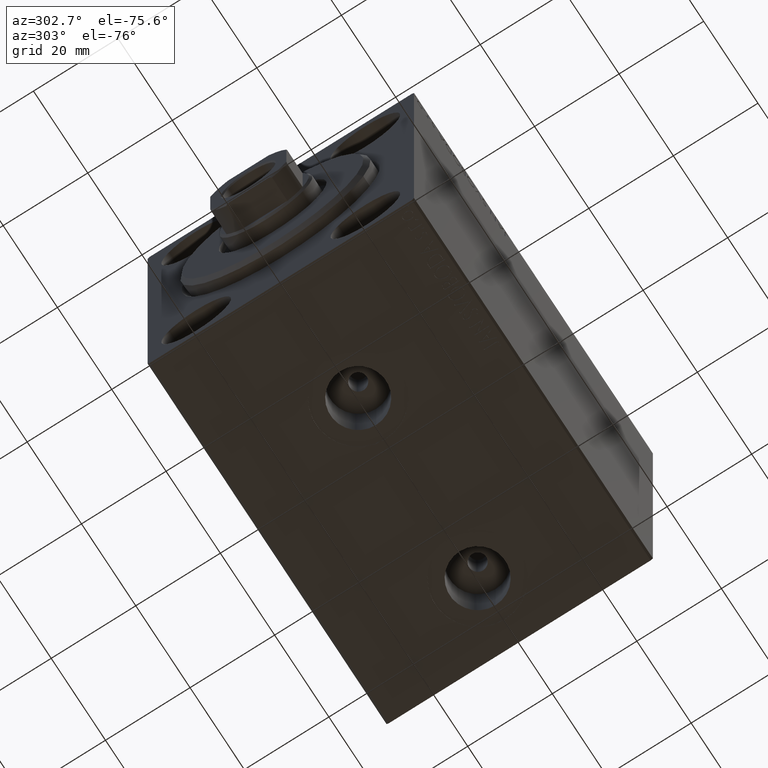
[diagram: clean part render]
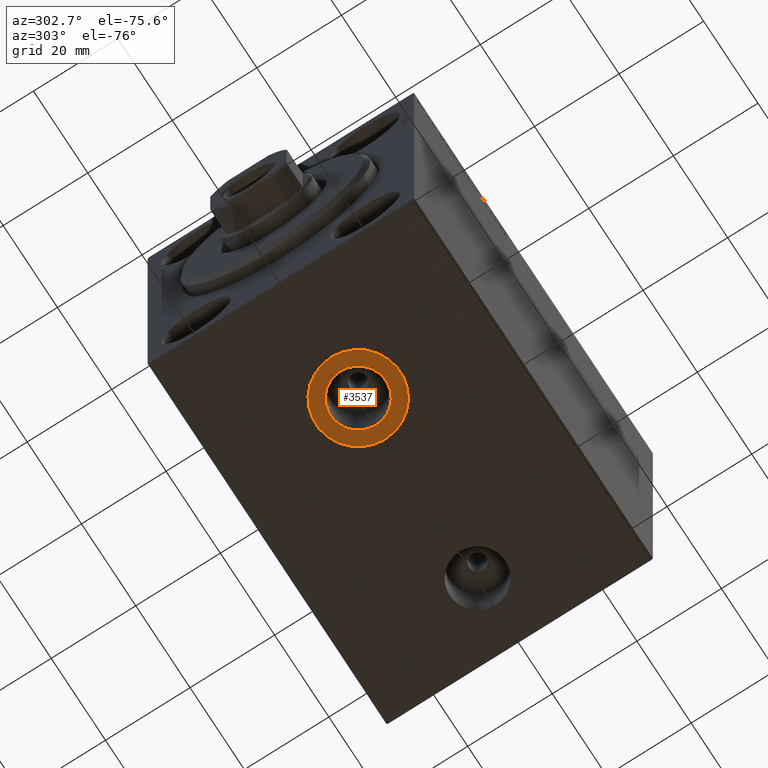
[diagram: same view with one face highlighted and labeled with its STEP entity id]
A machine part, auxiliary view. The second image highlights one B-rep face of the part: STEP entity #3537.
In plain terms, the highlighted planar face has unit normal (0, 0, -1).
Its self-contained STEP definition (entity closure, byte-faithful):
#520 = EDGE_CURVE ( 'NONE', #20063, #17519, #19411, .T. ) ;
#556 = DIRECTION ( 'NONE',  ( 0.000000000000000000, 0.000000000000000000, -1.000000000000000000 ) ) ;
#728 = VERTEX_POINT ( 'NONE', #14528 ) ;
#3537 = ADVANCED_FACE ( 'NONE', ( #9938, #13954 ), #13731, .T. ) ;
#3865 = DIRECTION ( 'NONE',  ( -1.000000000000000000, 0.000000000000000000, 0.000000000000000000 ) ) ;
#3895 = DIRECTION ( 'NONE',  ( -1.000000000000000000, 0.000000000000000000, 0.000000000000000000 ) ) ;
#4556 = CARTESIAN_POINT ( 'NONE',  ( 28.50000000000000000, -6.196433163362530470E-15, -42.40000000000000568 ) ) ;
#4656 = CARTESIAN_POINT ( 'NONE',  ( 35.07999999999999829, -5.390615569523572217E-15, -42.40000000000000568 ) ) ;
#7444 = DIRECTION ( 'NONE',  ( 0.000000000000000000, 0.000000000000000000, -1.000000000000000000 ) ) ;
#7819 = AXIS2_PLACEMENT_3D ( 'NONE', #34392, #556, #3895 ) ;
#9938 = FACE_BOUND ( 'NONE', #37043, .T. ) ;
#11197 = CIRCLE ( 'NONE', #19026, 6.580000000000002736 ) ;
#13714 = VERTEX_POINT ( 'NONE', #4656 ) ;
#13730 = CARTESIAN_POINT ( 'NONE',  ( 38.50000000000000000, -4.971786364215177411E-15, -42.40000000000000568 ) ) ;
#13731 = PLANE ( 'NONE',  #35105 ) ;
#13954 = FACE_OUTER_BOUND ( 'NONE', #41103, .T. ) ;
#14528 = CARTESIAN_POINT ( 'NONE',  ( 21.91999999999999815, -6.196433163362530470E-15, -42.40000000000000568 ) ) ;
#17519 = VERTEX_POINT ( 'NONE', #41495 ) ;
#18118 = ORIENTED_EDGE ( 'NONE', *, *, #29023, .F. ) ;
#19026 = AXIS2_PLACEMENT_3D ( 'NONE', #28732, #42284, #38731 ) ;
#19411 = CIRCLE ( 'NONE', #32926, 9.999999999999998224 ) ;
#20063 = VERTEX_POINT ( 'NONE', #13730 ) ;
#20275 = ORIENTED_EDGE ( 'NONE', *, *, #43525, .F. ) ;
#24182 = CARTESIAN_POINT ( 'NONE',  ( 0.000000000000000000, 0.000000000000000000, -42.40000000000000568 ) ) ;
#27017 = CIRCLE ( 'NONE', #7819, 9.999999999999998224 ) ;
#28732 = CARTESIAN_POINT ( 'NONE',  ( 28.50000000000000000, -6.196433163362530470E-15, -42.40000000000000568 ) ) ;
#29023 = EDGE_CURVE ( 'NONE', #728, #13714, #11197, .T. ) ;
#30868 = DIRECTION ( 'NONE',  ( 0.000000000000000000, 0.000000000000000000, -1.000000000000000000 ) ) ;
#31682 = DIRECTION ( 'NONE',  ( 0.000000000000000000, 0.000000000000000000, -1.000000000000000000 ) ) ;
#32902 = AXIS2_PLACEMENT_3D ( 'NONE', #38332, #31682, #3865 ) ;
#32926 = AXIS2_PLACEMENT_3D ( 'NONE', #4556, #7444, #38366 ) ;
#33982 = DIRECTION ( 'NONE',  ( -1.000000000000000000, 0.000000000000000000, -0.000000000000000000 ) ) ;
#34392 = CARTESIAN_POINT ( 'NONE',  ( 28.50000000000000000, -6.196433163362530470E-15, -42.40000000000000568 ) ) ;
#35105 = AXIS2_PLACEMENT_3D ( 'NONE', #24182, #30868, #33982 ) ;
#35835 = EDGE_CURVE ( 'NONE', #17519, #20063, #27017, .T. ) ;
#37043 = EDGE_LOOP ( 'NONE', ( #18118, #20275 ) ) ;
#38168 = ORIENTED_EDGE ( 'NONE', *, *, #35835, .T. ) ;
#38332 = CARTESIAN_POINT ( 'NONE',  ( 28.50000000000000000, -6.196433163362530470E-15, -42.40000000000000568 ) ) ;
#38366 = DIRECTION ( 'NONE',  ( -1.000000000000000000, 0.000000000000000000, 0.000000000000000000 ) ) ;
#38557 = CIRCLE ( 'NONE', #32902, 6.580000000000002736 ) ;
#38731 = DIRECTION ( 'NONE',  ( -1.000000000000000000, 0.000000000000000000, 0.000000000000000000 ) ) ;
#41103 = EDGE_LOOP ( 'NONE', ( #38168, #43513 ) ) ;
#41495 = CARTESIAN_POINT ( 'NONE',  ( 18.50000000000000355, -6.196433163362530470E-15, -42.40000000000000568 ) ) ;
#42284 = DIRECTION ( 'NONE',  ( 0.000000000000000000, 0.000000000000000000, -1.000000000000000000 ) ) ;
#43513 = ORIENTED_EDGE ( 'NONE', *, *, #520, .T. ) ;
#43525 = EDGE_CURVE ( 'NONE', #13714, #728, #38557, .T. ) ;